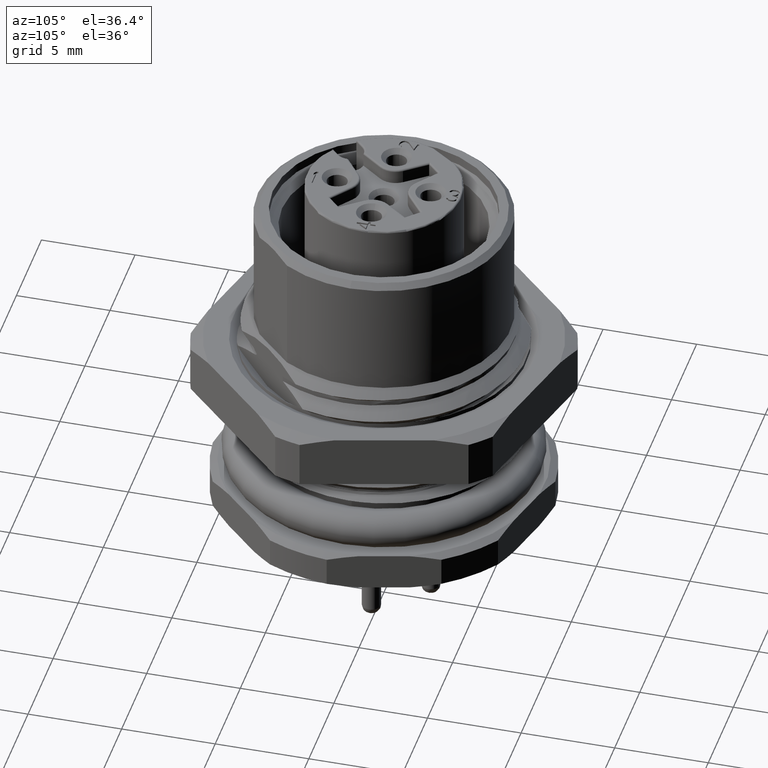
[diagram: clean part render]
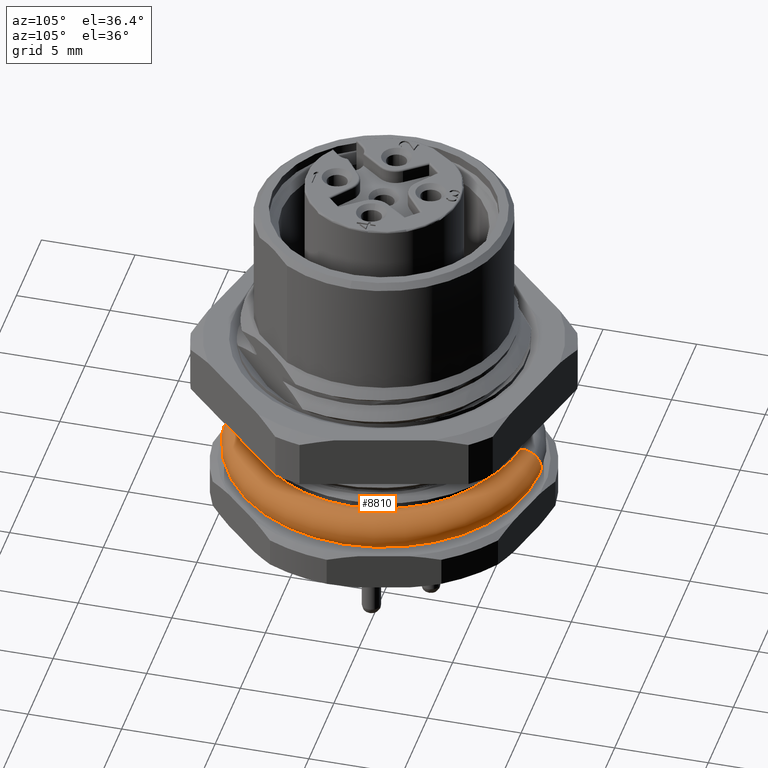
[diagram: same view with one face highlighted and labeled with its STEP entity id]
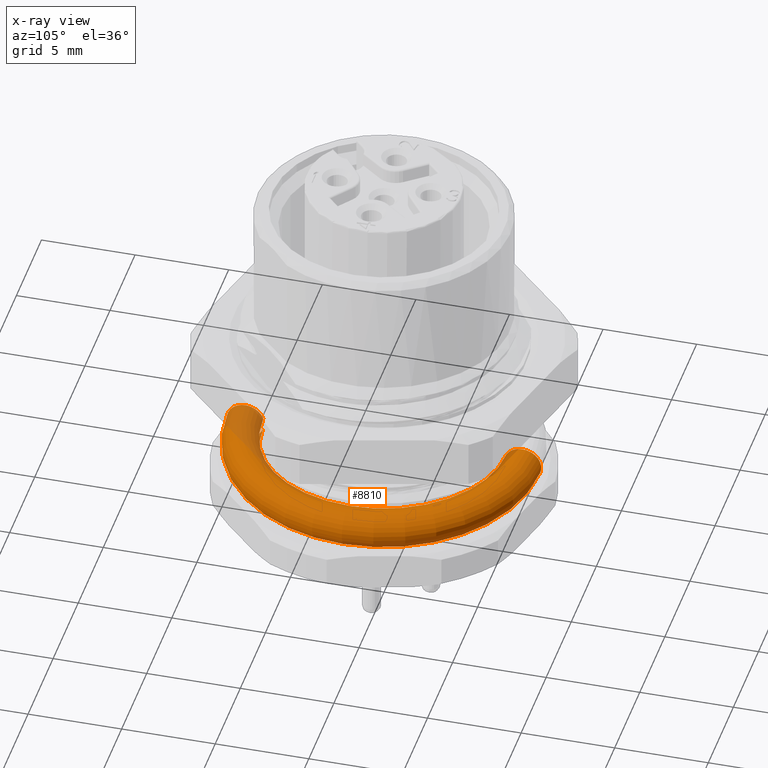
[diagram: x-ray of the same camera — body ghosted, the highlighted face saturated]
A machine part, auxiliary view. The second image highlights one B-rep face of the part: STEP entity #8810.
The next image is the same camera in x-ray: the body ghosted, the highlighted face saturated — about 10% of this face is hidden behind the body in this view.
In plain terms, the highlighted toroidal blend (fillet) surface has major radius 7.4 mm and minor (blend) radius 1 mm.
Its self-contained STEP definition (entity closure, byte-faithful):
#1163=CARTESIAN_POINT('',(0.E0,0.E0,-1.237750100080E0));
#1164=DIRECTION('',(0.E0,0.E0,1.E0));
#1165=DIRECTION('',(1.E0,0.E0,0.E0));
#1166=AXIS2_PLACEMENT_3D('',#1163,#1164,#1165);
#1186=CARTESIAN_POINT('',(0.E0,-7.4E0,-1.55E0));
#1187=DIRECTION('',(1.E0,0.E0,0.E0));
#1188=DIRECTION('',(0.E0,9.5E-1,3.122498999199E-1));
#1189=AXIS2_PLACEMENT_3D('',#1186,#1187,#1188);
#1191=CARTESIAN_POINT('',(0.E0,7.4E0,-1.55E0));
#1192=DIRECTION('',(1.E0,0.E0,0.E0));
#1193=DIRECTION('',(0.E0,-9.5E-1,-3.122498999199E-1));
#1194=AXIS2_PLACEMENT_3D('',#1191,#1192,#1193);
#1196=CARTESIAN_POINT('',(0.E0,0.E0,-1.862249899920E0));
#1197=DIRECTION('',(0.E0,0.E0,1.E0));
#1198=DIRECTION('',(0.E0,-1.E0,0.E0));
#1199=AXIS2_PLACEMENT_3D('',#1196,#1197,#1198);
#1206=CARTESIAN_POINT('',(0.E0,0.E0,-1.862249899920E0));
#1207=DIRECTION('',(0.E0,0.E0,1.E0));
#1208=DIRECTION('',(1.E0,0.E0,0.E0));
#1209=AXIS2_PLACEMENT_3D('',#1206,#1207,#1208);
#2038=CARTESIAN_POINT('',(0.E0,0.E0,-1.237750100080E0));
#2039=DIRECTION('',(0.E0,0.E0,1.E0));
#2040=DIRECTION('',(0.E0,-1.E0,0.E0));
#2041=AXIS2_PLACEMENT_3D('',#2038,#2039,#2040);
#6494=CARTESIAN_POINT('',(0.E0,-6.45E0,-1.237750100080E0));
#6495=CARTESIAN_POINT('',(6.45E0,0.E0,-1.237750100080E0));
#6496=VERTEX_POINT('',#6494);
#6497=VERTEX_POINT('',#6495);
#6498=CARTESIAN_POINT('',(0.E0,-6.45E0,-1.862249899920E0));
#6499=CARTESIAN_POINT('',(6.45E0,0.E0,-1.862249899920E0));
#6500=VERTEX_POINT('',#6498);
#6501=VERTEX_POINT('',#6499);
#6506=CARTESIAN_POINT('',(0.E0,6.45E0,-1.237750100080E0));
#6507=VERTEX_POINT('',#6506);
#6508=CARTESIAN_POINT('',(0.E0,6.45E0,-1.862249899920E0));
#6509=VERTEX_POINT('',#6508);
#8792=CARTESIAN_POINT('',(0.E0,0.E0,-1.55E0));
#8793=DIRECTION('',(0.E0,0.E0,1.E0));
#8794=DIRECTION('',(0.E0,1.E0,0.E0));
#8795=AXIS2_PLACEMENT_3D('',#8792,#8793,#8794);
#8796=TOROIDAL_SURFACE('',#8795,7.4E0,1.E0);
#8798=ORIENTED_EDGE('',*,*,#8797,.F.);
#8800=ORIENTED_EDGE('',*,*,#8799,.F.);
#8802=ORIENTED_EDGE('',*,*,#8801,.F.);
#8804=ORIENTED_EDGE('',*,*,#8803,.F.);
#8806=ORIENTED_EDGE('',*,*,#8805,.T.);
#8807=ORIENTED_EDGE('',*,*,#8773,.T.);
#8808=EDGE_LOOP('',(#8798,#8800,#8802,#8804,#8806,#8807));
#8809=FACE_OUTER_BOUND('',#8808,.F.);
#1167=CIRCLE('',#1166,6.45E0);
#1190=CIRCLE('',#1189,1.E0);
#1195=CIRCLE('',#1194,1.E0);
#1200=CIRCLE('',#1199,6.45E0);
#1210=CIRCLE('',#1209,6.45E0);
#2042=CIRCLE('',#2041,6.45E0);
#8773=EDGE_CURVE('',#6497,#6507,#1167,.T.);
#8797=EDGE_CURVE('',#6509,#6507,#1195,.T.);
#8799=EDGE_CURVE('',#6501,#6509,#1210,.T.);
#8801=EDGE_CURVE('',#6500,#6501,#1200,.T.);
#8803=EDGE_CURVE('',#6496,#6500,#1190,.T.);
#8805=EDGE_CURVE('',#6496,#6497,#2042,.T.);
#8810=ADVANCED_FACE('',(#8809),#8796,.T.);